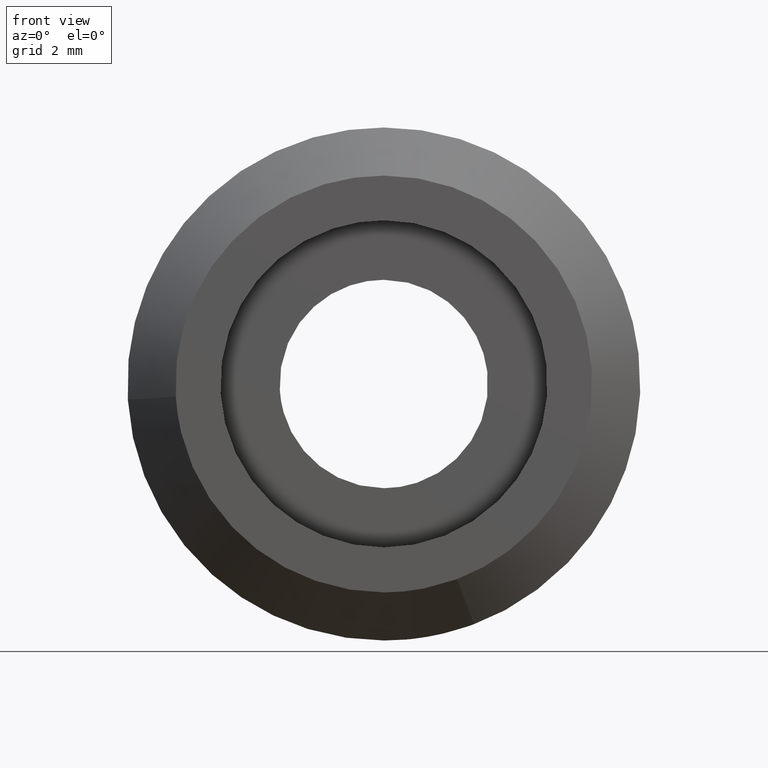
[diagram: clean part render]
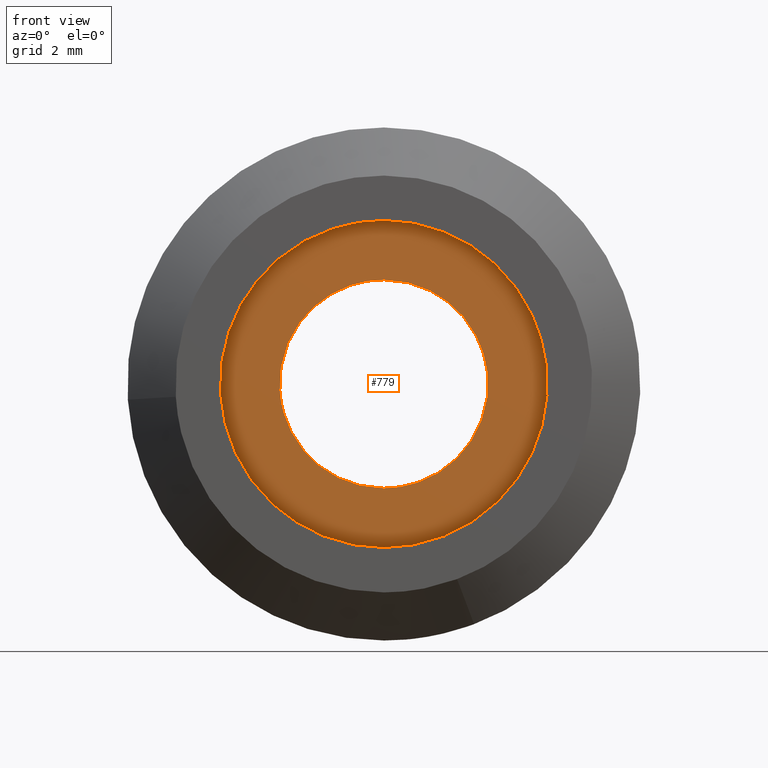
[diagram: same view with one face highlighted and labeled with its STEP entity id]
A machine part, front view. The second image highlights one B-rep face of the part: STEP entity #779.
In plain terms, the highlighted face is a freeform B-spline surface patch.
Its self-contained STEP definition (entity closure, byte-faithful):
#428=CARTESIAN_POINT('',(-3.243938284306497,3.469447E-017,-0.198404656197849));
#429=VERTEX_POINT('',#428);
#435=CARTESIAN_POINT('',(0.0,0.0,-3.250000000000000));
#436=VERTEX_POINT('',#435);
#437=CARTESIAN_POINT('',(0.0,0.0,-3.250000000000000));
#438=CARTESIAN_POINT('',(-3.057297641984092,0.0,-3.250000000000000));
#439=CARTESIAN_POINT('',(-3.243938284306497,3.469447E-017,-0.198404656197849));
#447=(BOUNDED_CURVE()B_SPLINE_CURVE(2,(#437,#438,#439),.UNSPECIFIED.,.F.,.U.)B_SPLINE_CURVE_WITH_KNOTS((3,3),(0.500000000000000,0.739333126988512),.UNSPECIFIED.)CURVE()GEOMETRIC_REPRESENTATION_ITEM()RATIONAL_B_SPLINE_CURVE((1.0,0.719603800270584,0.976072394756659))REPRESENTATION_ITEM(''));
#448=EDGE_CURVE('',#436,#429,#447,.T.);
#450=CARTESIAN_POINT('',(3.227281480315944,3.194357E-017,0.383606890957840));
#451=VERTEX_POINT('',#450);
#452=CARTESIAN_POINT('',(3.227281480315944,3.194357E-017,0.383606890957840));
#453=CARTESIAN_POINT('',(3.250000000000000,0.0,0.192476179922436));
#454=CARTESIAN_POINT('',(3.250000000000000,0.0,0.0));
#455=CARTESIAN_POINT('',(3.250000000000000,0.0,-3.250000000000000));
#456=CARTESIAN_POINT('',(0.0,0.0,-3.250000000000000));
#464=(BOUNDED_CURVE()B_SPLINE_CURVE(2,(#452,#453,#454,#455,#456),.UNSPECIFIED.,.F.,.U.)B_SPLINE_CURVE_WITH_KNOTS((3,2,3),(0.229562702447560,0.250000000000000,0.500000000000000),.UNSPECIFIED.)CURVE()GEOMETRIC_REPRESENTATION_ITEM()RATIONAL_B_SPLINE_CURVE((0.956027202904301,0.976056216544070,1.0,0.707106781186547,1.0))REPRESENTATION_ITEM(''));
#465=EDGE_CURVE('',#451,#436,#464,.T.);
#509=CARTESIAN_POINT('',(0.0,0.0,3.250000000000000));
#510=VERTEX_POINT('',#509);
#511=CARTESIAN_POINT('',(0.0,0.0,3.250000000000000));
#512=CARTESIAN_POINT('',(2.886571147015454,0.0,3.250000000000000));
#513=CARTESIAN_POINT('',(3.227281480315944,3.194357E-017,0.383606890957840));
#521=(BOUNDED_CURVE()B_SPLINE_CURVE(2,(#511,#512,#513),.UNSPECIFIED.,.F.,.U.)B_SPLINE_CURVE_WITH_KNOTS((3,3),(0.0,0.229562702447560),.UNSPECIFIED.)CURVE()GEOMETRIC_REPRESENTATION_ITEM()RATIONAL_B_SPLINE_CURVE((1.0,0.731050564642477,0.956027202904301))REPRESENTATION_ITEM(''));
#522=EDGE_CURVE('',#510,#451,#521,.T.);
#524=CARTESIAN_POINT('',(-3.243938284306497,3.469447E-017,-0.198404656197849));
#525=CARTESIAN_POINT('',(-3.250000000000000,0.0,-0.099294927733059));
#526=CARTESIAN_POINT('',(-3.250000000000000,0.0,0.0));
#527=CARTESIAN_POINT('',(-3.250000000000000,0.0,3.250000000000000));
#528=CARTESIAN_POINT('',(0.0,0.0,3.250000000000000));
#536=(BOUNDED_CURVE()B_SPLINE_CURVE(2,(#524,#525,#526,#527,#528),.UNSPECIFIED.,.F.,.U.)B_SPLINE_CURVE_WITH_KNOTS((3,2,3),(0.739333126988512,0.750000000000000,1.0),.UNSPECIFIED.)CURVE()GEOMETRIC_REPRESENTATION_ITEM()RATIONAL_B_SPLINE_CURVE((0.976072394756659,0.987502980915963,1.0,0.707106781186547,1.0))REPRESENTATION_ITEM(''));
#537=EDGE_CURVE('',#429,#510,#536,.T.);
#580=CARTESIAN_POINT('',(5.064348875071119,-2.917867E-014,0.601972151814212));
#581=VERTEX_POINT('',#580);
#582=CARTESIAN_POINT('',(0.0,0.0,-5.100000000000001));
#583=VERTEX_POINT('',#582);
#584=CARTESIAN_POINT('',(5.064348875071119,-2.917867E-014,0.601972151814212));
#585=CARTESIAN_POINT('',(5.100000000000001,0.0,0.302041774833430));
#586=CARTESIAN_POINT('',(5.100000000000001,0.0,0.0));
#587=CARTESIAN_POINT('',(5.100000000000001,0.0,-5.100000000000001));
#588=CARTESIAN_POINT('',(0.0,0.0,-5.100000000000001));
#596=(BOUNDED_CURVE()B_SPLINE_CURVE(2,(#584,#585,#586,#587,#588),.UNSPECIFIED.,.F.,.U.)B_SPLINE_CURVE_WITH_KNOTS((3,2,3),(0.229562555106003,0.250000000000000,0.500000000000000),.UNSPECIFIED.)CURVE()GEOMETRIC_REPRESENTATION_ITEM()RATIONAL_B_SPLINE_CURVE((0.956026914108389,0.976056043922698,1.0,0.707106781186548,1.0))REPRESENTATION_ITEM(''));
#597=EDGE_CURVE('',#581,#583,#596,.T.);
#599=CARTESIAN_POINT('',(-5.090487553960555,9.225259E-015,-0.311346210786117));
#600=VERTEX_POINT('',#599);
#601=CARTESIAN_POINT('',(0.0,0.0,-5.100000000000001));
#602=CARTESIAN_POINT('',(-4.797602207275556,0.0,-5.100000000000001));
#603=CARTESIAN_POINT('',(-5.090487553960555,9.225259E-015,-0.311346210786117));
#611=(BOUNDED_CURVE()B_SPLINE_CURVE(2,(#601,#602,#603),.UNSPECIFIED.,.F.,.U.)B_SPLINE_CURVE_WITH_KNOTS((3,3),(0.500000000000000,0.739333007691040),.UNSPECIFIED.)CURVE()GEOMETRIC_REPRESENTATION_ITEM()RATIONAL_B_SPLINE_CURVE((1.0,0.719603940036266,0.976072139079234))REPRESENTATION_ITEM(''));
#612=EDGE_CURVE('',#583,#600,#611,.T.);
#679=CARTESIAN_POINT('',(0.0,0.0,5.100000000000001));
#680=VERTEX_POINT('',#679);
#681=CARTESIAN_POINT('',(0.0,0.0,5.100000000000001));
#682=CARTESIAN_POINT('',(4.529692284562907,0.0,5.100000000000001));
#683=CARTESIAN_POINT('',(5.064348875071119,-2.917867E-014,0.601972151814212));
#691=(BOUNDED_CURVE()B_SPLINE_CURVE(2,(#681,#682,#683),.UNSPECIFIED.,.F.,.U.)B_SPLINE_CURVE_WITH_KNOTS((3,3),(0.0,0.229562555106003),.UNSPECIFIED.)CURVE()GEOMETRIC_REPRESENTATION_ITEM()RATIONAL_B_SPLINE_CURVE((1.0,0.731050737263850,0.956026914108389))REPRESENTATION_ITEM(''));
#692=EDGE_CURVE('',#680,#581,#691,.T.);
#726=CARTESIAN_POINT('',(-5.090487553960555,9.225259E-015,-0.311346210786117));
#727=CARTESIAN_POINT('',(-5.100000000000001,0.0,-0.155818420522195));
#728=CARTESIAN_POINT('',(-5.100000000000001,0.0,0.0));
#729=CARTESIAN_POINT('',(-5.100000000000001,0.0,5.100000000000001));
#730=CARTESIAN_POINT('',(0.0,0.0,5.100000000000001));
#738=(BOUNDED_CURVE()B_SPLINE_CURVE(2,(#726,#727,#728,#729,#730),.UNSPECIFIED.,.F.,.U.)B_SPLINE_CURVE_WITH_KNOTS((3,2,3),(0.739333007691040,0.750000000000000,1.0),.UNSPECIFIED.)CURVE()GEOMETRIC_REPRESENTATION_ITEM()RATIONAL_B_SPLINE_CURVE((0.976072139079234,0.987502841150282,1.0,0.707106781186548,1.0))REPRESENTATION_ITEM(''));
#739=EDGE_CURVE('',#600,#680,#738,.T.);
#762=CARTESIAN_POINT('',(-5.609366138014463,0.0,5.609489884480118));
#763=CARTESIAN_POINT('',(-5.609366138014463,0.0,-5.609490249260544));
#764=CARTESIAN_POINT('',(5.609397235545782,0.0,5.609489884480118));
#765=CARTESIAN_POINT('',(5.609397235545782,0.0,-5.609490249260544));
#766=B_SPLINE_SURFACE_WITH_KNOTS('',1,1,((#762,#764),(#763,#765)),.UNSPECIFIED.,.F.,.F.,.U.,(2,2),(2,2),(0.0,11.218980133740660),(0.0,11.218763373560240),.UNSPECIFIED.);
#767=ORIENTED_EDGE('',*,*,#739,.F.);
#768=ORIENTED_EDGE('',*,*,#612,.F.);
#769=ORIENTED_EDGE('',*,*,#597,.F.);
#770=ORIENTED_EDGE('',*,*,#692,.F.);
#771=EDGE_LOOP('',(#767,#768,#769,#770));
#772=FACE_OUTER_BOUND('',#771,.T.);
#773=ORIENTED_EDGE('',*,*,#448,.T.);
#774=ORIENTED_EDGE('',*,*,#537,.T.);
#775=ORIENTED_EDGE('',*,*,#522,.T.);
#776=ORIENTED_EDGE('',*,*,#465,.T.);
#777=EDGE_LOOP('',(#773,#774,#775,#776));
#778=FACE_BOUND('',#777,.T.);
#779=ADVANCED_FACE('',(#772,#778),#766,.T.);